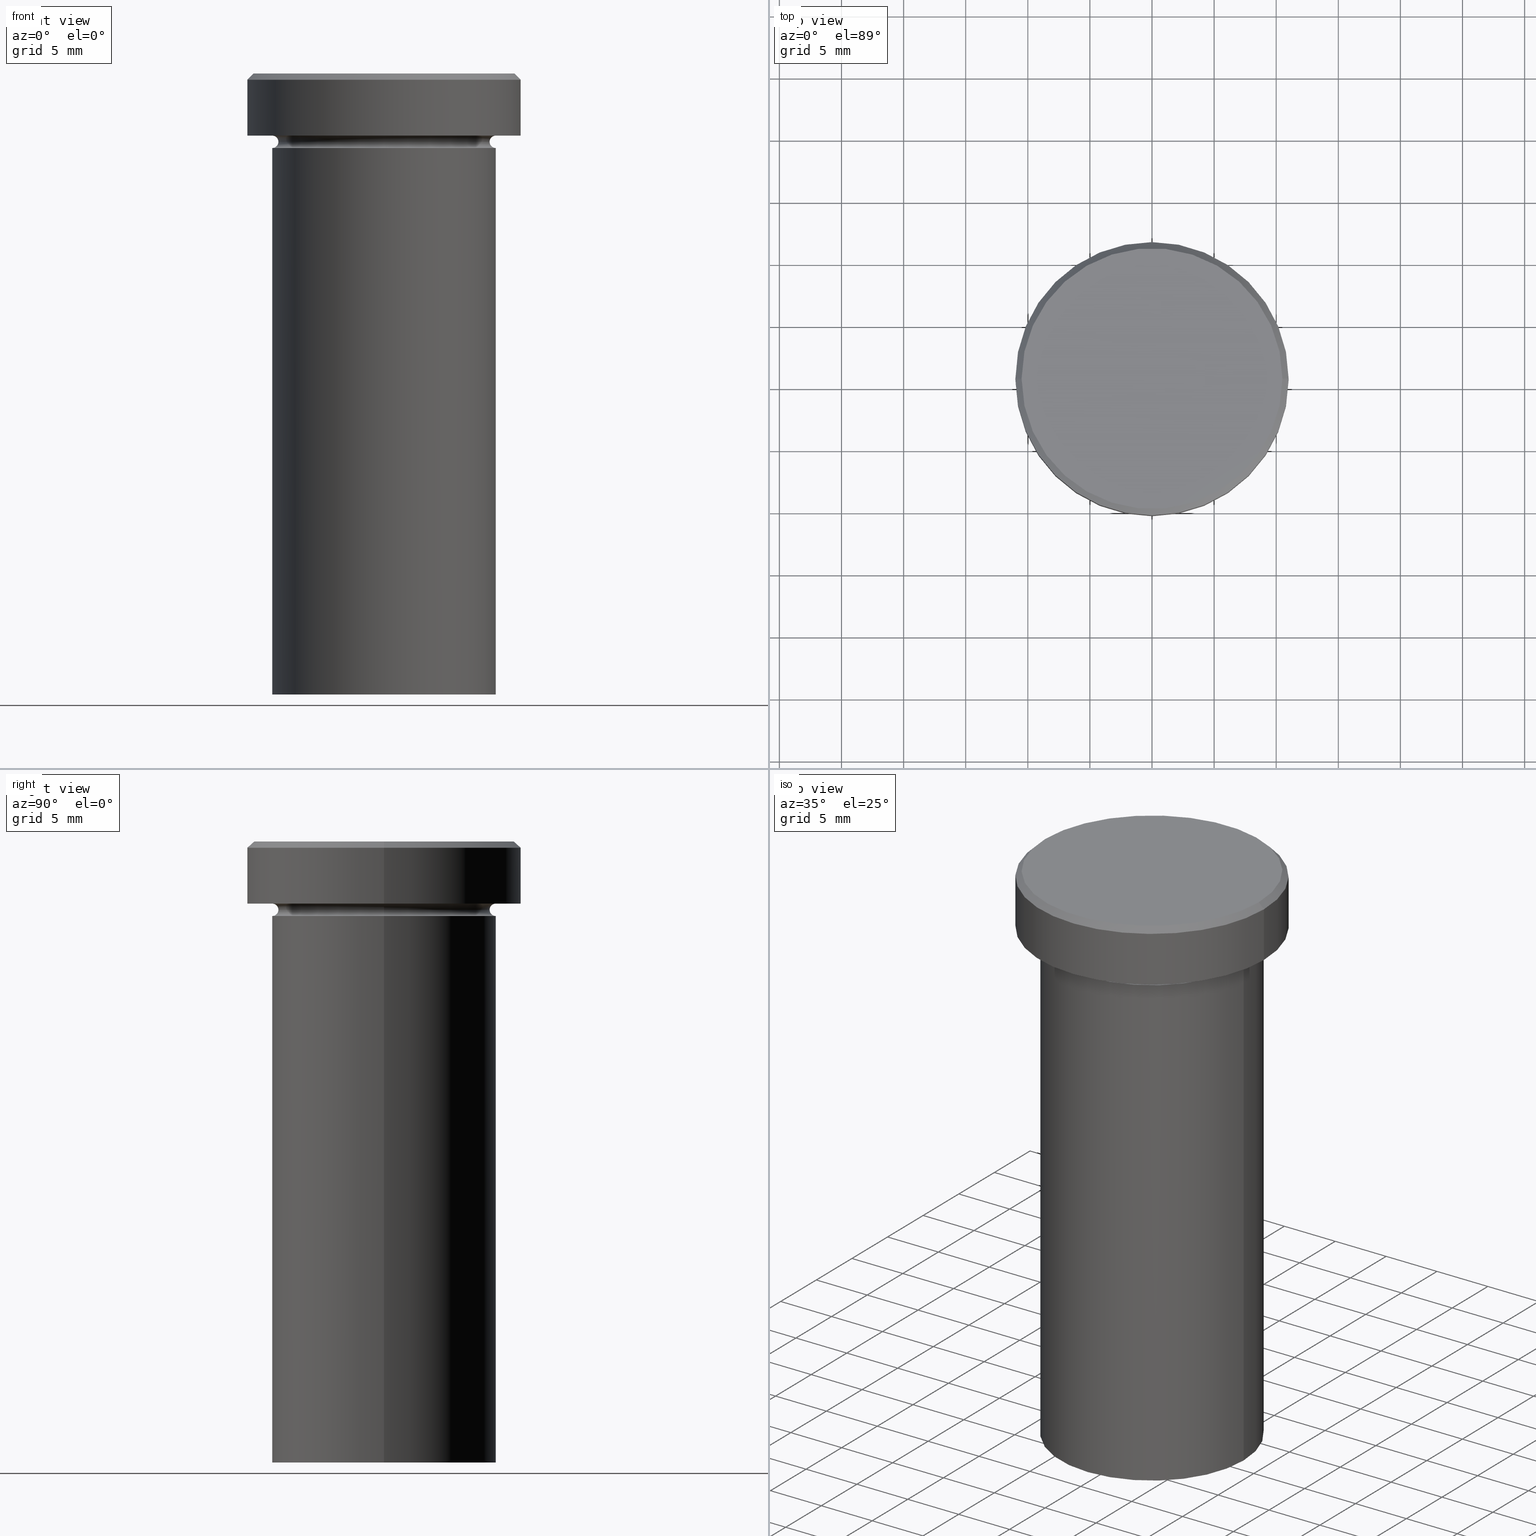
[diagram: canonical four-view strip — front | top / right | iso, engineering-drawing reading convention]
A machine part, canonical four-view strip (front | top / right | iso — engineering-drawing reading convention). The complete STEP part file that produces these views, byte-faithful:
ISO-10303-21;
HEADER;
FILE_DESCRIPTION (( 'STEP AP203' ),
    '1' );
FILE_NAME ('9458.STEP',
    '2024-01-02T22:00:38',
    ( '' ),
    ( '' ),
    'SwSTEP 2.0',
    'SolidWorks 2019',
    '' );
FILE_SCHEMA (( 'CONFIG_CONTROL_DESIGN' ));
ENDSEC;

DATA;
#1 = DIRECTION ( 'NONE',  ( 0.000000000000000000, -1.000000000000000000, 0.000000000000000000 ) ) ;
#2 = ORIENTED_EDGE ( 'NONE', *, *, #27, .T. ) ;
#3 = AXIS2_PLACEMENT_3D ( 'NONE', #28, #144, #380 ) ;
#4 = AXIS2_PLACEMENT_3D ( 'NONE', #290, #17, #165 ) ;
#5 = CARTESIAN_POINT ( 'NONE',  ( -9.000000000000000000, 1.102182119232617714E-15, 0.000000000000000000 ) ) ;
#6 = EDGE_LOOP ( 'NONE', ( #236, #66, #48, #216 ) ) ;
#7 = DIRECTION ( 'NONE',  ( 0.7071067811865451302, 8.659560562354904508E-17, -0.7071067811865500152 ) ) ;
#8 = ADVANCED_FACE ( 'NONE', ( #398 ), #195, .T. ) ;
#9 = CIRCLE ( 'NONE', #394, 9.000000000000000000 ) ;
#10 = ORIENTED_EDGE ( 'NONE', *, *, #295, .F. ) ;
#11 = CARTESIAN_POINT ( 'NONE',  ( 0.000000000000000000, 0.000000000000000000, -5.500000000000000000 ) ) ;
#12 = PRODUCT_RELATED_PRODUCT_CATEGORY ( 'detail', '', ( #40 ) ) ;
#13 = DIRECTION ( 'NONE',  ( -0.000000000000000000, -0.000000000000000000, 1.000000000000000000 ) ) ;
#14 = AXIS2_PLACEMENT_3D ( 'NONE', #205, #86, #337 ) ;
#15 = LOCAL_TIME ( 23, 0, 38.00000000000000000, #169 ) ;
#16 = AXIS2_PLACEMENT_3D ( 'NONE', #359, #171, #327 ) ;
#17 = DIRECTION ( 'NONE',  ( -0.000000000000000000, -0.000000000000000000, 1.000000000000000000 ) ) ;
#18 = CARTESIAN_POINT ( 'NONE',  ( 0.000000000000000000, 0.000000000000000000, 0.000000000000000000 ) ) ;
#19 = CC_DESIGN_PERSON_AND_ORGANIZATION_ASSIGNMENT ( #231, #183, ( #265 ) ) ;
#20 = DIRECTION ( 'NONE',  ( -0.000000000000000000, -0.000000000000000000, 1.000000000000000000 ) ) ;
#21 = DATE_AND_TIME ( #300, #298 ) ;
#22 = DIRECTION ( 'NONE',  ( -1.000000000000000000, 0.000000000000000000, 0.000000000000000000 ) ) ;
#23 = PERSON_AND_ORGANIZATION ( #251, #206 ) ;
#24 = FACE_OUTER_BOUND ( 'NONE', #191, .T. ) ;
#25 = AXIS2_PLACEMENT_3D ( 'NONE', #89, #97, #408 ) ;
#26 = VECTOR ( 'NONE', #340, 1000.000000000000000 ) ;
#27 = EDGE_CURVE ( 'NONE', #149, #409, #136, .T. ) ;
#28 = CARTESIAN_POINT ( 'NONE',  ( 0.000000000000000000, 0.000000000000000000, -5.000000000000000000 ) ) ;
#29 = CARTESIAN_POINT ( 'NONE',  ( 0.000000000000000000, 0.000000000000000000, -5.000000000000000000 ) ) ;
#30 = ORIENTED_EDGE ( 'NONE', *, *, #350, .T. ) ;
#31 = FACE_OUTER_BOUND ( 'NONE', #203, .T. ) ;
#32 = CARTESIAN_POINT ( 'NONE',  ( 0.000000000000000000, 0.000000000000000000, -50.00000000000000000 ) ) ;
#33 = VERTEX_POINT ( 'NONE', #257 ) ;
#34 = FACE_OUTER_BOUND ( 'NONE', #158, .T. ) ;
#35 = EDGE_LOOP ( 'NONE', ( #154, #146 ) ) ;
#36 = AXIS2_PLACEMENT_3D ( 'NONE', #32, #188, #302 ) ;
#37 = VERTEX_POINT ( 'NONE', #285 ) ;
#38 = CC_DESIGN_PERSON_AND_ORGANIZATION_ASSIGNMENT ( #401, #200, ( #40 ) ) ;
#39 = EDGE_LOOP ( 'NONE', ( #127, #208 ) ) ;
#40 = PRODUCT ( '9458', '9458', '', ( #228 ) ) ;
#41 = EDGE_LOOP ( 'NONE', ( #61, #243, #355, #352 ) ) ;
#42 = ORIENTED_EDGE ( 'NONE', *, *, #219, .F. ) ;
#43 = CC_DESIGN_DATE_AND_TIME_ASSIGNMENT ( #252, #396, ( #348 ) ) ;
#44 = DESIGN_CONTEXT ( 'detailed design', #150, 'design' ) ;
#45 = CC_DESIGN_APPROVAL ( #328, ( #288 ) ) ;
#46 = EDGE_LOOP ( 'NONE', ( #245, #88, #212, #242 ) ) ;
#47 = CARTESIAN_POINT ( 'NONE',  ( -9.000000000000000000, 0.000000000000000000, -4.999999999999999112 ) ) ;
#48 = ORIENTED_EDGE ( 'NONE', *, *, #178, .T. ) ;
#49 = FACE_OUTER_BOUND ( 'NONE', #392, .T. ) ;
#50 =( NAMED_UNIT ( * ) SI_UNIT ( $, .STERADIAN. ) SOLID_ANGLE_UNIT ( ) );
#51 = ADVANCED_FACE ( 'NONE', ( #106 ), #176, .F. ) ;
#52 = CARTESIAN_POINT ( 'NONE',  ( -9.000000000000000000, 1.102182119232617714E-15, -50.00000000000000000 ) ) ;
#53 = CARTESIAN_POINT ( 'NONE',  ( 0.000000000000000000, 11.00000000000000000, -5.000000000000000000 ) ) ;
#54 = CIRCLE ( 'NONE', #289, 11.00000000000000000 ) ;
#55 = LOCAL_TIME ( 23, 0, 38.00000000000000000, #367 ) ;
#56 = DIRECTION ( 'NONE',  ( -0.000000000000000000, -0.000000000000000000, 1.000000000000000000 ) ) ;
#57 = FACE_OUTER_BOUND ( 'NONE', #218, .T. ) ;
#58 = DATE_AND_TIME ( #369, #175 ) ;
#59 = DIRECTION ( 'NONE',  ( -0.000000000000000000, -0.000000000000000000, 1.000000000000000000 ) ) ;
#60 = FACE_OUTER_BOUND ( 'NONE', #46, .T. ) ;
#61 = ORIENTED_EDGE ( 'NONE', *, *, #256, .F. ) ;
#62 = DIRECTION ( 'NONE',  ( -1.000000000000000000, 0.000000000000000000, 0.000000000000000000 ) ) ;
#63 = DIRECTION ( 'NONE',  ( -0.000000000000000000, -0.000000000000000000, 1.000000000000000000 ) ) ;
#64 = PERSON_AND_ORGANIZATION ( #251, #206 ) ;
#65 = EDGE_CURVE ( 'NONE', #409, #37, #371, .T. ) ;
#66 = ORIENTED_EDGE ( 'NONE', *, *, #108, .T. ) ;
#67 = LINE ( 'NONE', #406, #254 ) ;
#68 = VECTOR ( 'NONE', #116, 1000.000000000000000 ) ;
#69 = ORIENTED_EDGE ( 'NONE', *, *, #104, .T. ) ;
#70 = ORIENTED_EDGE ( 'NONE', *, *, #303, .F. ) ;
#71 = CC_DESIGN_PERSON_AND_ORGANIZATION_ASSIGNMENT ( #177, #263, ( #288 ) ) ;
#72 = VERTEX_POINT ( 'NONE', #52 ) ;
#73 = AXIS2_PLACEMENT_3D ( 'NONE', #342, #63, #345 ) ;
#74 = ORIENTED_EDGE ( 'NONE', *, *, #140, .F. ) ;
#75 = CARTESIAN_POINT ( 'NONE',  ( 0.000000000000000000, 0.000000000000000000, -5.500000000000000000 ) ) ;
#76 = APPROVAL ( #112, 'NEUR�EN�' ) ;
#77 = DIRECTION ( 'NONE',  ( -0.000000000000000000, -0.000000000000000000, 1.000000000000000000 ) ) ;
#78 = DIRECTION ( 'NONE',  ( 1.000000000000000000, 0.000000000000000000, 0.000000000000000000 ) ) ;
#79 = CARTESIAN_POINT ( 'NONE',  ( 0.000000000000000000, 0.000000000000000000, -5.000000000000000000 ) ) ;
#80 = ADVANCED_FACE ( 'NONE', ( #49 ), #173, .T. ) ;
#81 = APPLICATION_PROTOCOL_DEFINITION ( 'international standard', 'config_control_design', 1994, #150 ) ;
#82 = CALENDAR_DATE ( 2024, 2, 1 ) ;
#83 = PERSON_AND_ORGANIZATION ( #251, #206 ) ;
#84 = DIRECTION ( 'NONE',  ( -0.000000000000000000, -0.000000000000000000, 1.000000000000000000 ) ) ;
#85 = EDGE_CURVE ( 'NONE', #222, #33, #332, .T. ) ;
#86 = DIRECTION ( 'NONE',  ( -0.000000000000000000, -0.000000000000000000, 1.000000000000000000 ) ) ;
#87 = CARTESIAN_POINT ( 'NONE',  ( 11.00000000000000000, 0.000000000000000000, -5.000000000000000000 ) ) ;
#88 = ORIENTED_EDGE ( 'NONE', *, *, #108, .F. ) ;
#89 = CARTESIAN_POINT ( 'NONE',  ( 0.000000000000000000, 9.000000000000000000, -50.00000000000000000 ) ) ;
#90 = DIRECTION ( 'NONE',  ( 1.000000000000000000, 0.000000000000000000, 0.000000000000000000 ) ) ;
#91 = CIRCLE ( 'NONE', #320, 0.5000000000000004441 ) ;
#92 = AXIS2_PLACEMENT_3D ( 'NONE', #373, #180, #117 ) ;
#93 = CLOSED_SHELL ( 'NONE', ( #407, #147, #51, #162, #80, #170, #202, #133, #404, #8, #241, #360, #224 ) ) ;
#94 = CIRCLE ( 'NONE', #304, 11.00000000000000000 ) ;
#95 = CARTESIAN_POINT ( 'NONE',  ( -9.000000000000000000, 1.102182119232617714E-15, -6.000000000000000000 ) ) ;
#96 = ORIENTED_EDGE ( 'NONE', *, *, #85, .T. ) ;
#97 = DIRECTION ( 'NONE',  ( 0.000000000000000000, 0.000000000000000000, -1.000000000000000000 ) ) ;
#98 = PERSON_AND_ORGANIZATION_ROLE ( 'classification_officer' ) ;
#99 = ORIENTED_EDGE ( 'NONE', *, *, #192, .F. ) ;
#100 = AXIS2_PLACEMENT_3D ( 'NONE', #274, #179, #151 ) ;
#101 = AXIS2_PLACEMENT_3D ( 'NONE', #79, #329, #137 ) ;
#102 = CALENDAR_DATE ( 2024, 2, 1 ) ;
#103 = LOCAL_TIME ( 23, 0, 38.00000000000000000, #163 ) ;
#104 = EDGE_CURVE ( 'NONE', #375, #222, #268, .T. ) ;
#105 = DIRECTION ( 'NONE',  ( 1.000000000000000000, 0.000000000000000000, 0.000000000000000000 ) ) ;
#106 = FACE_OUTER_BOUND ( 'NONE', #129, .T. ) ;
#107 = CIRCLE ( 'NONE', #36, 9.000000000000000000 ) ;
#108 = EDGE_CURVE ( 'NONE', #409, #149, #365, .T. ) ;
#109 =( LENGTH_UNIT ( ) NAMED_UNIT ( * ) SI_UNIT ( .MILLI., .METRE. ) );
#110 = CYLINDRICAL_SURFACE ( 'NONE', #215, 11.00000000000000000 ) ;
#111 = APPLICATION_PROTOCOL_DEFINITION ( 'international standard', 'config_control_design', 1994, #368 ) ;
#112 = APPROVAL_STATUS ( 'not_yet_approved' ) ;
#113 = APPROVAL_STATUS ( 'not_yet_approved' ) ;
#114 = CC_DESIGN_PERSON_AND_ORGANIZATION_ASSIGNMENT ( #64, #98, ( #348 ) ) ;
#115 = CARTESIAN_POINT ( 'NONE',  ( 0.000000000000000000, 0.000000000000000000, -5.500000000000000000 ) ) ;
#116 = DIRECTION ( 'NONE',  ( -0.000000000000000000, -0.000000000000000000, 1.000000000000000000 ) ) ;
#117 = DIRECTION ( 'NONE',  ( 1.000000000000000000, 0.000000000000000000, 0.000000000000000000 ) ) ;
#118 = DIRECTION ( 'NONE',  ( -0.000000000000000000, -1.000000000000000000, -0.000000000000000000 ) ) ;
#119 = DIRECTION ( 'NONE',  ( -0.000000000000000000, -0.000000000000000000, 1.000000000000000000 ) ) ;
#120 = EDGE_LOOP ( 'NONE', ( #277, #69, #96, #193 ) ) ;
#121 = CYLINDRICAL_SURFACE ( 'NONE', #100, 9.000000000000000000 ) ;
#122 = CARTESIAN_POINT ( 'NONE',  ( 10.49999999999999467, 1.316495309083404420E-15, 0.000000000000000000 ) ) ;
#123 = AXIS2_PLACEMENT_3D ( 'NONE', #115, #234, #62 ) ;
#124 = ORIENTED_EDGE ( 'NONE', *, *, #130, .T. ) ;
#125 = LINE ( 'NONE', #5, #68 ) ;
#126 = SECURITY_CLASSIFICATION_LEVEL ( 'unclassified' ) ;
#127 = ORIENTED_EDGE ( 'NONE', *, *, #219, .T. ) ;
#128 = ORIENTED_EDGE ( 'NONE', *, *, #186, .F. ) ;
#129 = EDGE_LOOP ( 'NONE', ( #189, #124, #322, #294 ) ) ;
#130 = EDGE_CURVE ( 'NONE', #149, #214, #402, .T. ) ;
#131 = AXIS2_PLACEMENT_3D ( 'NONE', #11, #279, #247 ) ;
#132 = CARTESIAN_POINT ( 'NONE',  ( 0.000000000000000000, 0.000000000000000000, -5.500000000000000000 ) ) ;
#133 = ADVANCED_FACE ( 'NONE', ( #172 ), #110, .T. ) ;
#134 = TOROIDAL_SURFACE ( 'NONE', #226, 9.000000000000000000, 0.5000000000000000000 ) ;
#135 = DIRECTION ( 'NONE',  ( 0.000000000000000000, 0.000000000000000000, -1.000000000000000000 ) ) ;
#136 = CIRCLE ( 'NONE', #381, 8.499999999999998224 ) ;
#137 = DIRECTION ( 'NONE',  ( 1.000000000000000000, 0.000000000000000000, 0.000000000000000000 ) ) ;
#138 = DATE_TIME_ROLE ( 'creation_date' ) ;
#139 = CARTESIAN_POINT ( 'NONE',  ( 8.499999999999998224, 0.000000000000000000, -5.500000000000000000 ) ) ;
#140 = EDGE_CURVE ( 'NONE', #308, #33, #94, .T. ) ;
#141 = PERSON_AND_ORGANIZATION_ROLE ( 'creator' ) ;
#142 = CARTESIAN_POINT ( 'NONE',  ( 0.000000000000000000, 0.000000000000000000, 0.000000000000000000 ) ) ;
#143 = CIRCLE ( 'NONE', #14, 10.49999999999999467 ) ;
#144 = DIRECTION ( 'NONE',  ( -0.000000000000000000, -0.000000000000000000, 1.000000000000000000 ) ) ;
#145 = DIRECTION ( 'NONE',  ( -0.000000000000000000, -0.000000000000000000, 1.000000000000000000 ) ) ;
#146 = ORIENTED_EDGE ( 'NONE', *, *, #104, .F. ) ;
#147 = ADVANCED_FACE ( 'NONE', ( #31 ), #190, .F. ) ;
#148 = CARTESIAN_POINT ( 'NONE',  ( 0.000000000000000000, 0.000000000000000000, -50.00000000000000000 ) ) ;
#149 = VERTEX_POINT ( 'NONE', #383 ) ;
#150 = APPLICATION_CONTEXT ( 'configuration controlled 3d designs of mechanical parts and assemblies' ) ;
#151 = DIRECTION ( 'NONE',  ( 1.000000000000000000, 0.000000000000000000, 0.000000000000000000 ) ) ;
#152 = DIRECTION ( 'NONE',  ( -0.000000000000000000, -0.000000000000000000, 1.000000000000000000 ) ) ;
#153 = CONICAL_SURFACE ( 'NONE', #282, 10.49999999999999467, 0.7853981633974447263 ) ;
#154 = ORIENTED_EDGE ( 'NONE', *, *, #350, .F. ) ;
#155 = EDGE_LOOP ( 'NONE', ( #382, #344, #313, #10 ) ) ;
#156 = CARTESIAN_POINT ( 'NONE',  ( -10.49999999999999467, 0.000000000000000000, 0.000000000000000000 ) ) ;
#157 = EDGE_CURVE ( 'NONE', #388, #214, #273, .T. ) ;
#158 = EDGE_LOOP ( 'NONE', ( #70, #128, #159, #239 ) ) ;
#159 = ORIENTED_EDGE ( 'NONE', *, *, #281, .T. ) ;
#160 = ORIENTED_EDGE ( 'NONE', *, *, #178, .F. ) ;
#161 = CARTESIAN_POINT ( 'NONE',  ( 9.000000000000000000, 0.000000000000000000, -6.000000000000000000 ) ) ;
#162 = ADVANCED_FACE ( 'NONE', ( #201 ), #121, .T. ) ;
#163 = COORDINATED_UNIVERSAL_TIME_OFFSET ( 1, 0, .AHEAD. ) ;
#164 = MANIFOLD_SOLID_BREP ( 'Zkosen�1', #93 ) ;
#165 = DIRECTION ( 'NONE',  ( 1.000000000000000000, 0.000000000000000000, 0.000000000000000000 ) ) ;
#166 = APPROVAL_STATUS ( 'not_yet_approved' ) ;
#167 = CONICAL_SURFACE ( 'NONE', #221, 10.49999999999999467, 0.7853981633974447263 ) ;
#168 = APPROVAL_PERSON_ORGANIZATION ( #83, #76, #229 ) ;
#169 = COORDINATED_UNIVERSAL_TIME_OFFSET ( 1, 0, .AHEAD. ) ;
#170 = ADVANCED_FACE ( 'NONE', ( #24 ), #269, .T. ) ;
#171 = DIRECTION ( 'NONE',  ( -1.224646799147353207E-16, 1.000000000000000000, 0.000000000000000000 ) ) ;
#172 = FACE_OUTER_BOUND ( 'NONE', #120, .T. ) ;
#173 = CYLINDRICAL_SURFACE ( 'NONE', #217, 11.00000000000000000 ) ;
#174 = APPROVAL_DATE_TIME ( #366, #377 ) ;
#175 = LOCAL_TIME ( 23, 0, 38.00000000000000000, #405 ) ;
#176 = TOROIDAL_SURFACE ( 'NONE', #315, 9.000000000000000000, 0.5000000000000000000 ) ;
#177 = PERSON_AND_ORGANIZATION ( #251, #206 ) ;
#178 = EDGE_CURVE ( 'NONE', #149, #386, #91, .T. ) ;
#179 = DIRECTION ( 'NONE',  ( -0.000000000000000000, -0.000000000000000000, 1.000000000000000000 ) ) ;
#180 = DIRECTION ( 'NONE',  ( 0.000000000000000000, 0.000000000000000000, 1.000000000000000000 ) ) ;
#181 = CARTESIAN_POINT ( 'NONE',  ( -9.000000000000000000, 0.000000000000000000, -5.500000000000000000 ) ) ;
#182 = LINE ( 'NONE', #185, #353 ) ;
#183 = PERSON_AND_ORGANIZATION_ROLE ( 'design_supplier' ) ;
#184 = DIRECTION ( 'NONE',  ( 1.000000000000000000, 0.000000000000000000, 0.000000000000000000 ) ) ;
#185 = CARTESIAN_POINT ( 'NONE',  ( -11.00000000000000000, 1.347111479062088405E-15, 0.000000000000000000 ) ) ;
#186 = EDGE_CURVE ( 'NONE', #323, #351, #143, .T. ) ;
#187 = CARTESIAN_POINT ( 'NONE',  ( 0.000000000000000000, 0.000000000000000000, -6.000000000000000000 ) ) ;
#188 = DIRECTION ( 'NONE',  ( -0.000000000000000000, -0.000000000000000000, 1.000000000000000000 ) ) ;
#189 = ORIENTED_EDGE ( 'NONE', *, *, #27, .F. ) ;
#190 = TOROIDAL_SURFACE ( 'NONE', #123, 9.000000000000000000, 0.5000000000000000000 ) ;
#191 = EDGE_LOOP ( 'NONE', ( #385, #349 ) ) ;
#192 = EDGE_CURVE ( 'NONE', #351, #323, #363, .T. ) ;
#193 = ORIENTED_EDGE ( 'NONE', *, *, #393, .T. ) ;
#194 = FACE_BOUND ( 'NONE', #39, .T. ) ;
#195 = CYLINDRICAL_SURFACE ( 'NONE', #4, 9.000000000000000000 ) ;
#196 = DIRECTION ( 'NONE',  ( 0.000000000000000000, 0.000000000000000000, -1.000000000000000000 ) ) ;
#197 = DATE_AND_TIME ( #82, #55 ) ;
#198 = CIRCLE ( 'NONE', #3, 9.000000000000000000 ) ;
#199 =( NAMED_UNIT ( * ) PLANE_ANGLE_UNIT ( ) SI_UNIT ( $, .RADIAN. ) );
#200 = PERSON_AND_ORGANIZATION_ROLE ( 'design_owner' ) ;
#201 = FACE_OUTER_BOUND ( 'NONE', #155, .T. ) ;
#202 = ADVANCED_FACE ( 'NONE', ( #266 ), #210, .T. ) ;
#203 = EDGE_LOOP ( 'NONE', ( #2, #319, #42, #160 ) ) ;
#204 = AXIS2_PLACEMENT_3D ( 'NONE', #53, #196, #362 ) ;
#205 = CARTESIAN_POINT ( 'NONE',  ( 0.000000000000000000, 0.000000000000000000, 0.000000000000000000 ) ) ;
#206 = ORGANIZATION ( 'NEUR�EN�', 'NEUR�EN�', '' ) ;
#207 = FACE_OUTER_BOUND ( 'NONE', #6, .T. ) ;
#208 = ORIENTED_EDGE ( 'NONE', *, *, #213, .T. ) ;
#209 = CARTESIAN_POINT ( 'NONE',  ( 0.000000000000000000, 0.000000000000000000, -5.500000000000000000 ) ) ;
#210 = PLANE ( 'NONE',  #400 ) ;
#211 = CARTESIAN_POINT ( 'NONE',  ( 9.000000000000000000, 0.000000000000000000, 0.000000000000000000 ) ) ;
#212 = ORIENTED_EDGE ( 'NONE', *, *, #341, .T. ) ;
#213 = EDGE_CURVE ( 'NONE', #37, #386, #198, .T. ) ;
#214 = VERTEX_POINT ( 'NONE', #95 ) ;
#215 = AXIS2_PLACEMENT_3D ( 'NONE', #358, #77, #293 ) ;
#216 = ORIENTED_EDGE ( 'NONE', *, *, #213, .F. ) ;
#217 = AXIS2_PLACEMENT_3D ( 'NONE', #18, #20, #225 ) ;
#218 = EDGE_LOOP ( 'NONE', ( #99, #270, #74, #347 ) ) ;
#219 = EDGE_CURVE ( 'NONE', #386, #37, #330, .T. ) ;
#220 = AXIS2_PLACEMENT_3D ( 'NONE', #187, #84, #372 ) ;
#221 = AXIS2_PLACEMENT_3D ( 'NONE', #299, #135, #22 ) ;
#222 = VERTEX_POINT ( 'NONE', #87 ) ;
#223 = CARTESIAN_POINT ( 'NONE',  ( -9.000000000000000000, 1.102182119232617714E-15, -5.500000000000000000 ) ) ;
#224 = ADVANCED_FACE ( 'NONE', ( #34 ), #153, .T. ) ;
#225 = DIRECTION ( 'NONE',  ( 1.000000000000000000, 0.000000000000000000, 0.000000000000000000 ) ) ;
#226 = AXIS2_PLACEMENT_3D ( 'NONE', #209, #119, #346 ) ;
#227 = SHAPE_DEFINITION_REPRESENTATION ( #272, #286 ) ;
#228 = MECHANICAL_CONTEXT ( 'NONE', #368, 'mechanical' ) ;
#229 = APPROVAL_ROLE ( '' ) ;
#230 = AXIS2_PLACEMENT_3D ( 'NONE', #276, #235, #378 ) ;
#231 = PERSON_AND_ORGANIZATION ( #251, #206 ) ;
#232 = EDGE_CURVE ( 'NONE', #72, #283, #9, .T. ) ;
#233 = DIRECTION ( 'NONE',  ( -0.000000000000000000, -0.000000000000000000, 1.000000000000000000 ) ) ;
#234 = DIRECTION ( 'NONE',  ( 0.000000000000000000, 0.000000000000000000, -1.000000000000000000 ) ) ;
#235 = DIRECTION ( 'NONE',  ( -0.000000000000000000, -0.000000000000000000, 1.000000000000000000 ) ) ;
#236 = ORIENTED_EDGE ( 'NONE', *, *, #65, .F. ) ;
#237 = CIRCLE ( 'NONE', #246, 11.00000000000000000 ) ;
#238 = DIRECTION ( 'NONE',  ( 0.000000000000000000, 0.000000000000000000, -1.000000000000000000 ) ) ;
#239 = ORIENTED_EDGE ( 'NONE', *, *, #393, .F. ) ;
#240 = CARTESIAN_POINT ( 'NONE',  ( 9.000000000000000000, 0.000000000000000000, -50.00000000000000000 ) ) ;
#241 = ADVANCED_FACE ( 'NONE', ( #60 ), #134, .F. ) ;
#242 = ORIENTED_EDGE ( 'NONE', *, *, #157, .T. ) ;
#243 = ORIENTED_EDGE ( 'NONE', *, *, #232, .T. ) ;
#244 = CARTESIAN_POINT ( 'NONE',  ( -11.00000000000000000, 1.347111479062088405E-15, -0.5000000000000073275 ) ) ;
#245 = ORIENTED_EDGE ( 'NONE', *, *, #130, .F. ) ;
#246 = AXIS2_PLACEMENT_3D ( 'NONE', #29, #145, #90 ) ;
#247 = DIRECTION ( 'NONE',  ( -1.000000000000000000, 0.000000000000000000, 0.000000000000000000 ) ) ;
#248 = CIRCLE ( 'NONE', #379, 0.5000000000000004441 ) ;
#249 = APPROVAL_PERSON_ORGANIZATION ( #336, #328, #403 ) ;
#250 = EDGE_CURVE ( 'NONE', #214, #388, #390, .T. ) ;
#251 = PERSON ( 'NEUR�EN�', 'NEUR�EN�', 'NEUR�EN�', ('NEUR�EN�'), ('NEUR�EN�'), ('NEUR�EN�') ) ;
#252 = DATE_AND_TIME ( #102, #103 ) ;
#253 = APPROVAL_ROLE ( '' ) ;
#254 = VECTOR ( 'NONE', #7, 1000.000000000000114 ) ;
#255 = CARTESIAN_POINT ( 'NONE',  ( 0.000000000000000000, 0.000000000000000000, -5.500000000000000000 ) ) ;
#256 = EDGE_CURVE ( 'NONE', #72, #214, #125, .T. ) ;
#257 = CARTESIAN_POINT ( 'NONE',  ( 11.00000000000000000, 0.000000000000000000, -0.5000000000000073275 ) ) ;
#258 = CALENDAR_DATE ( 2024, 2, 1 ) ;
#259 = AXIS2_PLACEMENT_3D ( 'NONE', #142, #59, #184 ) ;
#260 = EDGE_CURVE ( 'NONE', #283, #72, #107, .T. ) ;
#261 = DIRECTION ( 'NONE',  ( -1.000000000000000000, 1.224646799147353454E-16, 0.000000000000000000 ) ) ;
#262 = DIRECTION ( 'NONE',  ( 1.000000000000000000, 0.000000000000000000, 0.000000000000000000 ) ) ;
#263 = PERSON_AND_ORGANIZATION_ROLE ( 'creator' ) ;
#264 = VECTOR ( 'NONE', #267, 1000.000000000000114 ) ;
#265 = PRODUCT_DEFINITION_FORMATION_WITH_SPECIFIED_SOURCE ( 'LIBOVOLN�', '', #40, .NOT_KNOWN. ) ;
#266 = FACE_OUTER_BOUND ( 'NONE', #312, .T. ) ;
#267 = DIRECTION ( 'NONE',  ( -0.7071067811865451302, 0.000000000000000000, -0.7071067811865500152 ) ) ;
#268 = CIRCLE ( 'NONE', #101, 11.00000000000000000 ) ;
#269 = PLANE ( 'NONE',  #25 ) ;
#270 = ORIENTED_EDGE ( 'NONE', *, *, #303, .T. ) ;
#271 = CARTESIAN_POINT ( 'NONE',  ( 9.000000000000000000, 0.000000000000000000, -5.500000000000000000 ) ) ;
#272 = PRODUCT_DEFINITION_SHAPE ( 'NONE', 'NONE',  #288 ) ;
#273 = CIRCLE ( 'NONE', #220, 9.000000000000000000 ) ;
#274 = CARTESIAN_POINT ( 'NONE',  ( 0.000000000000000000, 0.000000000000000000, 0.000000000000000000 ) ) ;
#275 = CC_DESIGN_APPROVAL ( #76, ( #265 ) ) ;
#276 = CARTESIAN_POINT ( 'NONE',  ( 0.000000000000000000, 0.000000000000000000, -6.000000000000000000 ) ) ;
#277 = ORIENTED_EDGE ( 'NONE', *, *, #324, .F. ) ;
#278 = CARTESIAN_POINT ( 'NONE',  ( 0.000000000000000000, 0.000000000000000000, 0.000000000000000000 ) ) ;
#279 = DIRECTION ( 'NONE',  ( 0.000000000000000000, 0.000000000000000000, -1.000000000000000000 ) ) ;
#280 = ORIENTED_EDGE ( 'NONE', *, *, #186, .T. ) ;
#281 = EDGE_CURVE ( 'NONE', #323, #308, #387, .T. ) ;
#282 = AXIS2_PLACEMENT_3D ( 'NONE', #278, #310, #343 ) ;
#283 = VERTEX_POINT ( 'NONE', #240 ) ;
#284 = DIRECTION ( 'NONE',  ( 0.000000000000000000, 0.000000000000000000, -1.000000000000000000 ) ) ;
#285 = CARTESIAN_POINT ( 'NONE',  ( 9.000000000000000000, 1.102182119232617714E-15, -4.999999999999999112 ) ) ;
#286 = ADVANCED_BREP_SHAPE_REPRESENTATION ( '9458', ( #164, #92 ), #391 ) ;
#287 = PLANE ( 'NONE',  #204 ) ;
#288 = PRODUCT_DEFINITION ( 'NEZN�M�', '', #265, #44 ) ;
#289 = AXIS2_PLACEMENT_3D ( 'NONE', #395, #284, #354 ) ;
#290 = CARTESIAN_POINT ( 'NONE',  ( 0.000000000000000000, 0.000000000000000000, 0.000000000000000000 ) ) ;
#291 = VECTOR ( 'NONE', #361, 1000.000000000000000 ) ;
#292 = AXIS2_PLACEMENT_3D ( 'NONE', #255, #56, #105 ) ;
#293 = DIRECTION ( 'NONE',  ( 1.000000000000000000, 0.000000000000000000, 0.000000000000000000 ) ) ;
#294 = ORIENTED_EDGE ( 'NONE', *, *, #341, .F. ) ;
#295 = EDGE_CURVE ( 'NONE', #283, #388, #384, .T. ) ;
#296 = CARTESIAN_POINT ( 'NONE',  ( 11.00000000000000000, 0.000000000000000000, 0.000000000000000000 ) ) ;
#297 = TOROIDAL_SURFACE ( 'NONE', #131, 9.000000000000000000, 0.5000000000000000000 ) ;
#298 = LOCAL_TIME ( 23, 0, 38.00000000000000000, #333 ) ;
#299 = CARTESIAN_POINT ( 'NONE',  ( 0.000000000000000000, 0.000000000000000000, 0.000000000000000000 ) ) ;
#300 = CALENDAR_DATE ( 2024, 2, 1 ) ;
#301 = APPROVAL_DATE_TIME ( #58, #76 ) ;
#302 = DIRECTION ( 'NONE',  ( 1.000000000000000000, 0.000000000000000000, 0.000000000000000000 ) ) ;
#303 = EDGE_CURVE ( 'NONE', #351, #33, #67, .T. ) ;
#304 = AXIS2_PLACEMENT_3D ( 'NONE', #376, #311, #262 ) ;
#305 = CC_DESIGN_SECURITY_CLASSIFICATION ( #348, ( #265 ) ) ;
#306 = DIRECTION ( 'NONE',  ( 1.000000000000000000, 0.000000000000000000, 0.000000000000000000 ) ) ;
#307 = DIRECTION ( 'NONE',  ( 0.000000000000000000, 0.000000000000000000, -1.000000000000000000 ) ) ;
#308 = VERTEX_POINT ( 'NONE', #244 ) ;
#309 = CARTESIAN_POINT ( 'NONE',  ( 0.000000000000000000, 0.000000000000000000, 0.000000000000000000 ) ) ;
#310 = DIRECTION ( 'NONE',  ( 0.000000000000000000, 0.000000000000000000, -1.000000000000000000 ) ) ;
#311 = DIRECTION ( 'NONE',  ( 0.000000000000000000, 0.000000000000000000, -1.000000000000000000 ) ) ;
#312 = EDGE_LOOP ( 'NONE', ( #280, #316 ) ) ;
#313 = ORIENTED_EDGE ( 'NONE', *, *, #157, .F. ) ;
#314 = APPROVAL_PERSON_ORGANIZATION ( #356, #377, #253 ) ;
#315 = AXIS2_PLACEMENT_3D ( 'NONE', #132, #397, #78 ) ;
#316 = ORIENTED_EDGE ( 'NONE', *, *, #192, .T. ) ;
#317 = ORIENTED_EDGE ( 'NONE', *, *, #140, .T. ) ;
#318 = CARTESIAN_POINT ( 'NONE',  ( -11.00000000000000000, 1.347111479062088405E-15, -5.000000000000000000 ) ) ;
#319 = ORIENTED_EDGE ( 'NONE', *, *, #65, .T. ) ;
#320 = AXIS2_PLACEMENT_3D ( 'NONE', #181, #118, #238 ) ;
#321 = AXIS2_PLACEMENT_3D ( 'NONE', #223, #399, #261 ) ;
#322 = ORIENTED_EDGE ( 'NONE', *, *, #250, .T. ) ;
#323 = VERTEX_POINT ( 'NONE', #335 ) ;
#324 = EDGE_CURVE ( 'NONE', #375, #308, #182, .T. ) ;
#325 = FACE_OUTER_BOUND ( 'NONE', #35, .T. ) ;
#326 = DIRECTION ( 'NONE',  ( 1.000000000000000000, 0.000000000000000000, 0.000000000000000000 ) ) ;
#327 = DIRECTION ( 'NONE',  ( -1.000000000000000000, -1.224646799147353454E-16, 0.000000000000000000 ) ) ;
#328 = APPROVAL ( #113, 'NEUR�EN�' ) ;
#329 = DIRECTION ( 'NONE',  ( -0.000000000000000000, -0.000000000000000000, 1.000000000000000000 ) ) ;
#330 = CIRCLE ( 'NONE', #73, 9.000000000000000000 ) ;
#331 = APPROVAL_DATE_TIME ( #197, #328 ) ;
#332 = LINE ( 'NONE', #296, #291 ) ;
#333 = COORDINATED_UNIVERSAL_TIME_OFFSET ( 1, 0, .AHEAD. ) ;
#334 = CC_DESIGN_PERSON_AND_ORGANIZATION_ASSIGNMENT ( #23, #141, ( #265 ) ) ;
#335 = CARTESIAN_POINT ( 'NONE',  ( -10.49999999999999467, 0.000000000000000000, 0.000000000000000000 ) ) ;
#336 = PERSON_AND_ORGANIZATION ( #251, #206 ) ;
#337 = DIRECTION ( 'NONE',  ( 1.000000000000000000, 0.000000000000000000, 0.000000000000000000 ) ) ;
#338 = DIRECTION ( 'NONE',  ( 1.000000000000000000, 0.000000000000000000, 0.000000000000000000 ) ) ;
#339 = ORIENTED_EDGE ( 'NONE', *, *, #85, .F. ) ;
#340 = DIRECTION ( 'NONE',  ( -0.000000000000000000, -0.000000000000000000, 1.000000000000000000 ) ) ;
#341 = EDGE_CURVE ( 'NONE', #409, #388, #248, .T. ) ;
#342 = CARTESIAN_POINT ( 'NONE',  ( 0.000000000000000000, 0.000000000000000000, -5.000000000000000000 ) ) ;
#343 = DIRECTION ( 'NONE',  ( -1.000000000000000000, 0.000000000000000000, 0.000000000000000000 ) ) ;
#344 = ORIENTED_EDGE ( 'NONE', *, *, #256, .T. ) ;
#345 = DIRECTION ( 'NONE',  ( -1.000000000000000000, 0.000000000000000000, 0.000000000000000000 ) ) ;
#346 = DIRECTION ( 'NONE',  ( 1.000000000000000000, 0.000000000000000000, 0.000000000000000000 ) ) ;
#347 = ORIENTED_EDGE ( 'NONE', *, *, #281, .F. ) ;
#348 = SECURITY_CLASSIFICATION ( '', '', #126 ) ;
#349 = ORIENTED_EDGE ( 'NONE', *, *, #232, .F. ) ;
#350 = EDGE_CURVE ( 'NONE', #222, #375, #237, .T. ) ;
#351 = VERTEX_POINT ( 'NONE', #122 ) ;
#352 = ORIENTED_EDGE ( 'NONE', *, *, #250, .F. ) ;
#353 = VECTOR ( 'NONE', #233, 1000.000000000000000 ) ;
#354 = DIRECTION ( 'NONE',  ( 1.000000000000000000, 0.000000000000000000, 0.000000000000000000 ) ) ;
#355 = ORIENTED_EDGE ( 'NONE', *, *, #295, .T. ) ;
#356 = PERSON_AND_ORGANIZATION ( #251, #206 ) ;
#357 = ORIENTED_EDGE ( 'NONE', *, *, #324, .T. ) ;
#358 = CARTESIAN_POINT ( 'NONE',  ( 0.000000000000000000, 0.000000000000000000, 0.000000000000000000 ) ) ;
#359 = CARTESIAN_POINT ( 'NONE',  ( 9.000000000000000000, 1.102182119232617714E-15, -5.500000000000000000 ) ) ;
#360 = ADVANCED_FACE ( 'NONE', ( #207 ), #297, .F. ) ;
#361 = DIRECTION ( 'NONE',  ( -0.000000000000000000, -0.000000000000000000, 1.000000000000000000 ) ) ;
#362 = DIRECTION ( 'NONE',  ( -1.000000000000000000, 0.000000000000000000, -0.000000000000000000 ) ) ;
#363 = CIRCLE ( 'NONE', #259, 10.49999999999999467 ) ;
#364 = CC_DESIGN_APPROVAL ( #377, ( #348 ) ) ;
#365 = CIRCLE ( 'NONE', #292, 8.499999999999998224 ) ;
#366 = DATE_AND_TIME ( #258, #15 ) ;
#367 = COORDINATED_UNIVERSAL_TIME_OFFSET ( 1, 0, .AHEAD. ) ;
#368 = APPLICATION_CONTEXT ( 'configuration controlled 3d designs of mechanical parts and assemblies' ) ;
#369 = CALENDAR_DATE ( 2024, 2, 1 ) ;
#370 = CC_DESIGN_DATE_AND_TIME_ASSIGNMENT ( #21, #138, ( #288 ) ) ;
#371 = CIRCLE ( 'NONE', #16, 0.5000000000000004441 ) ;
#372 = DIRECTION ( 'NONE',  ( 1.000000000000000000, 0.000000000000000000, 0.000000000000000000 ) ) ;
#373 = CARTESIAN_POINT ( 'NONE',  ( 0.000000000000000000, 0.000000000000000000, 0.000000000000000000 ) ) ;
#374 = DIRECTION ( 'NONE',  ( 0.000000000000000000, -0.000000000000000000, 1.000000000000000000 ) ) ;
#375 = VERTEX_POINT ( 'NONE', #318 ) ;
#376 = CARTESIAN_POINT ( 'NONE',  ( 0.000000000000000000, 0.000000000000000000, -0.5000000000000073275 ) ) ;
#377 = APPROVAL ( #166, 'NEUR�EN�' ) ;
#378 = DIRECTION ( 'NONE',  ( 1.000000000000000000, 0.000000000000000000, 0.000000000000000000 ) ) ;
#379 = AXIS2_PLACEMENT_3D ( 'NONE', #271, #1, #307 ) ;
#380 = DIRECTION ( 'NONE',  ( -1.000000000000000000, 0.000000000000000000, 0.000000000000000000 ) ) ;
#381 = AXIS2_PLACEMENT_3D ( 'NONE', #75, #13, #326 ) ;
#382 = ORIENTED_EDGE ( 'NONE', *, *, #260, .T. ) ;
#383 = CARTESIAN_POINT ( 'NONE',  ( -8.499999999999998224, 1.071565949253933927E-15, -5.500000000000000000 ) ) ;
#384 = LINE ( 'NONE', #211, #26 ) ;
#385 = ORIENTED_EDGE ( 'NONE', *, *, #260, .F. ) ;
#386 = VERTEX_POINT ( 'NONE', #47 ) ;
#387 = LINE ( 'NONE', #156, #264 ) ;
#388 = VERTEX_POINT ( 'NONE', #161 ) ;
#389 = UNCERTAINTY_MEASURE_WITH_UNIT (LENGTH_MEASURE( 1.000000000000000082E-05 ), #109, 'distance_accuracy_value', 'NONE');
#390 = CIRCLE ( 'NONE', #230, 9.000000000000000000 ) ;
#391 =( GEOMETRIC_REPRESENTATION_CONTEXT ( 3 ) GLOBAL_UNCERTAINTY_ASSIGNED_CONTEXT ( ( #389 ) ) GLOBAL_UNIT_ASSIGNED_CONTEXT ( ( #109, #199, #50 ) ) REPRESENTATION_CONTEXT ( 'NONE', 'WORKASPACE' ) );
#392 = EDGE_LOOP ( 'NONE', ( #30, #357, #317, #339 ) ) ;
#393 = EDGE_CURVE ( 'NONE', #33, #308, #54, .T. ) ;
#394 = AXIS2_PLACEMENT_3D ( 'NONE', #148, #152, #338 ) ;
#395 = CARTESIAN_POINT ( 'NONE',  ( 0.000000000000000000, 0.000000000000000000, -0.5000000000000073275 ) ) ;
#396 = DATE_TIME_ROLE ( 'classification_date' ) ;
#397 = DIRECTION ( 'NONE',  ( -0.000000000000000000, -0.000000000000000000, 1.000000000000000000 ) ) ;
#398 = FACE_OUTER_BOUND ( 'NONE', #41, .T. ) ;
#399 = DIRECTION ( 'NONE',  ( 1.224646799147353207E-16, 1.000000000000000000, 0.000000000000000000 ) ) ;
#400 = AXIS2_PLACEMENT_3D ( 'NONE', #309, #374, #306 ) ;
#401 = PERSON_AND_ORGANIZATION ( #251, #206 ) ;
#402 = CIRCLE ( 'NONE', #321, 0.5000000000000004441 ) ;
#403 = APPROVAL_ROLE ( '' ) ;
#404 = ADVANCED_FACE ( 'NONE', ( #194, #325 ), #287, .T. ) ;
#405 = COORDINATED_UNIVERSAL_TIME_OFFSET ( 1, 0, .AHEAD. ) ;
#406 = CARTESIAN_POINT ( 'NONE',  ( 10.49999999999999467, 1.285879139104720239E-15, 0.000000000000000000 ) ) ;
#407 = ADVANCED_FACE ( 'NONE', ( #57 ), #167, .T. ) ;
#408 = DIRECTION ( 'NONE',  ( -1.000000000000000000, 0.000000000000000000, -0.000000000000000000 ) ) ;
#409 = VERTEX_POINT ( 'NONE', #139 ) ;
ENDSEC;
END-ISO-10303-21;
